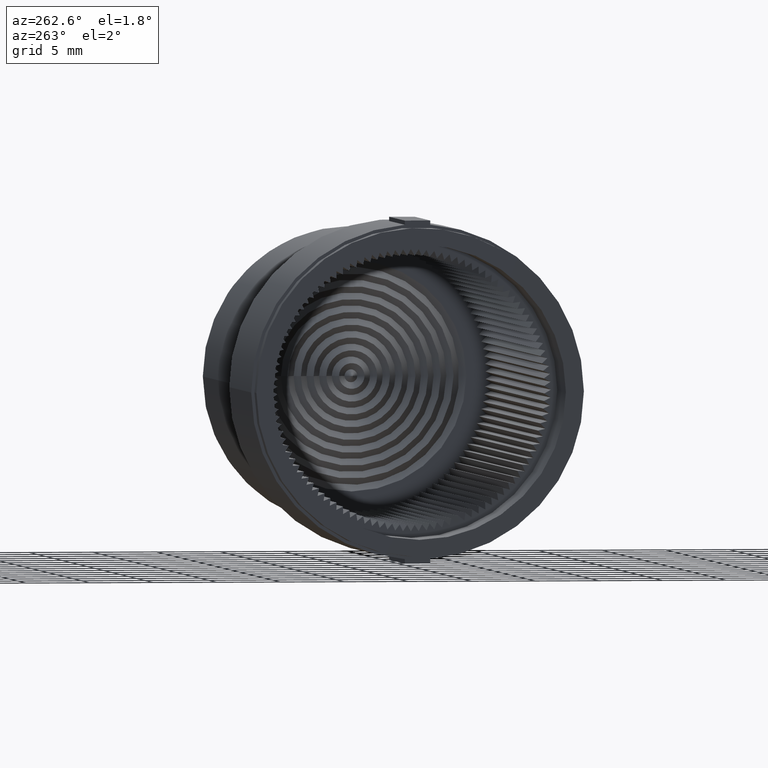
[diagram: clean part render]
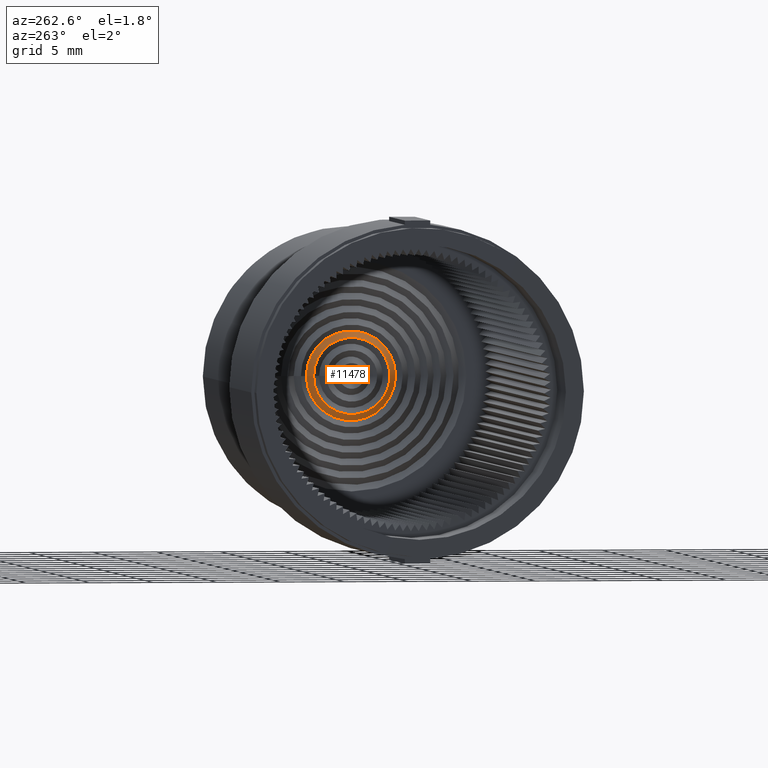
[diagram: same view with one face highlighted and labeled with its STEP entity id]
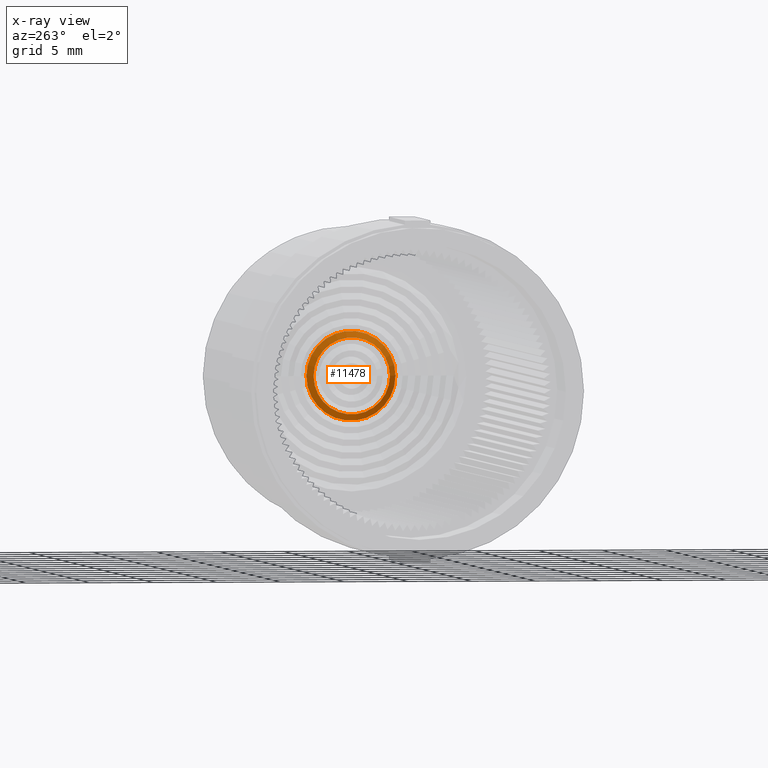
[diagram: x-ray of the same camera — body ghosted, the highlighted face saturated]
A machine part, auxiliary view. The second image highlights one B-rep face of the part: STEP entity #11478.
The next image is the same camera in x-ray: the body ghosted, the highlighted face saturated — about 0% of this face is hidden behind the body in this view.
In plain terms, the highlighted conical surface has half-angle 45 deg.
Its self-contained STEP definition (entity closure, byte-faithful):
#11444=CARTESIAN_POINT('',(21.346818619294687,5.093928645136327,0.0));
#11445=VERTEX_POINT('',#11444);
#11446=CARTESIAN_POINT('',(21.346818619294687,2.093928645136342,0.0));
#11447=DIRECTION('',(1.0,1.813423E-013,0.0));
#11448=DIRECTION('',(-1.813423E-013,1.0,0.0));
#11449=AXIS2_PLACEMENT_3D('',#11446,#11447,#11448);
#11450=CIRCLE('',#11449,2.999999999999985);
#11451=EDGE_CURVE('',#11445,#11445,#11450,.T.);
#11459=CARTESIAN_POINT('',(21.596818619294687,2.093928645136342,0.0));
#11460=DIRECTION('',(1.0,4.895456E-016,0.0));
#11461=DIRECTION('',(-1.813423E-013,1.0,0.0));
#11462=AXIS2_PLACEMENT_3D('',#11459,#11460,#11461);
#11463=CONICAL_SURFACE('',#11462,3.249999999999983,44.999999999999837);
#11464=CARTESIAN_POINT('',(21.846818619294687,5.593928645136322,0.0));
#11465=VERTEX_POINT('',#11464);
#11466=CARTESIAN_POINT('',(21.846818619294687,2.093928645136342,0.0));
#11467=DIRECTION('',(1.0,1.813423E-013,0.0));
#11468=DIRECTION('',(-1.813423E-013,1.0,0.0));
#11469=AXIS2_PLACEMENT_3D('',#11466,#11467,#11468);
#11470=CIRCLE('',#11469,3.499999999999981);
#11471=EDGE_CURVE('',#11465,#11465,#11470,.T.);
#11472=ORIENTED_EDGE('',*,*,#11471,.F.);
#11473=EDGE_LOOP('',(#11472));
#11474=FACE_OUTER_BOUND('',#11473,.T.);
#11475=ORIENTED_EDGE('',*,*,#11451,.T.);
#11476=EDGE_LOOP('',(#11475));
#11477=FACE_BOUND('',#11476,.T.);
#11478=ADVANCED_FACE('',(#11474,#11477),#11463,.T.);